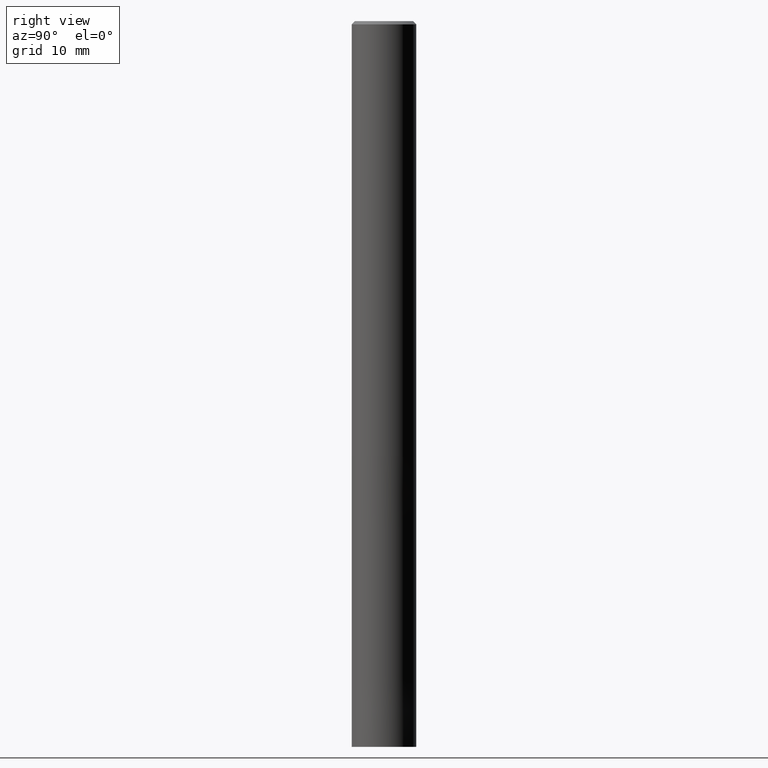
[diagram: clean part render]
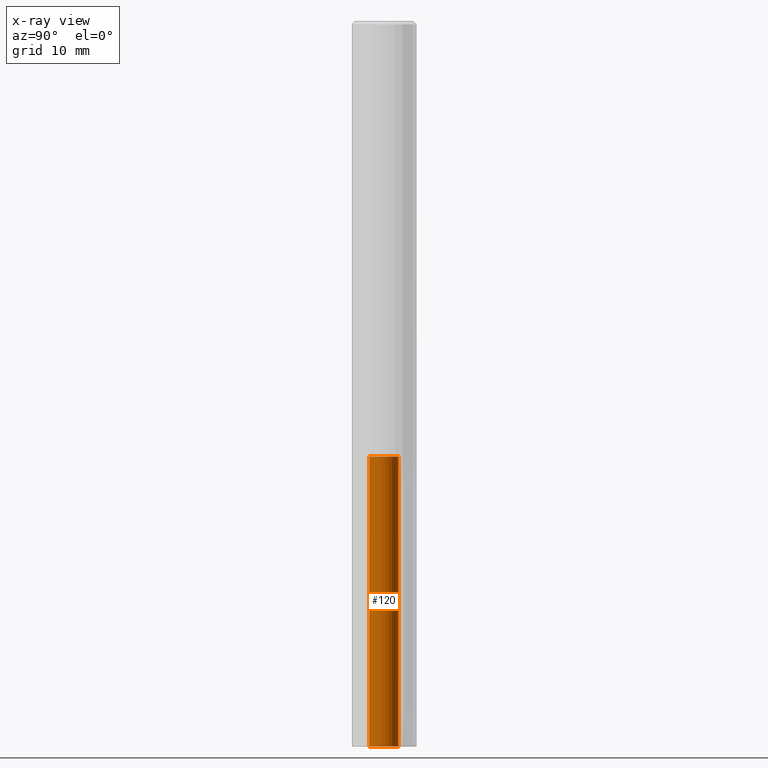
[diagram: x-ray — body ghosted, one internal face saturated and labeled with its STEP entity id]
A machine part, right view, then the same camera in x-ray: the body is ghosted and one INTERNAL B-rep face — a face not visible from any outside direction — is saturated and labeled: STEP entity #120.
In plain terms, the highlighted cylindrical surface (edge-blend (fillet) strip) has radius 1.8 mm, axis along (-0, -0, 1).
Its self-contained STEP definition (entity closure, byte-faithful):
#98=EDGE_CURVE('',#214,#142,#244,.T.);
#112=VERTEX_POINT('',#258);
#120=ADVANCED_FACE('',(#268),#269,.F.);
#134=EDGE_CURVE('',#218,#214,#287,.T.);
#142=VERTEX_POINT('',#296);
#194=EDGE_CURVE('',#112,#142,#356,.T.);
#214=VERTEX_POINT('',#377);
#216=EDGE_CURVE('',#112,#218,#379,.T.);
#218=VERTEX_POINT('',#381);
#244=LINE('',#400,#401);
#258=CARTESIAN_POINT('',(0.0,1.8,-54.0));
#268=FACE_OUTER_BOUND('',#432,.T.);
#269=CYLINDRICAL_SURFACE('',#433,1.8);
#287=CIRCLE('',#455,1.8);
#296=CARTESIAN_POINT('',(2.20429143688028E-016,-1.8,-54.0));
#356=CIRCLE('',#541,1.8);
#377=CARTESIAN_POINT('',(2.20429143688028E-016,-1.8,-90.0));
#379=LINE('',#568,#569);
#381=CARTESIAN_POINT('',(0.0,1.8,-90.0));
#400=CARTESIAN_POINT('',(2.20429143688028E-016,-1.8,-72.0));
#401=VECTOR('',#584,1.0);
#432=EDGE_LOOP('',(#610,#611,#612,#613));
#433=AXIS2_PLACEMENT_3D('',#614,#615,#616);
#455=AXIS2_PLACEMENT_3D('',#650,#651,#652);
#541=AXIS2_PLACEMENT_3D('',#735,#736,#737);
#568=CARTESIAN_POINT('',(-2.20429143688028E-016,1.8,-72.0));
#569=VECTOR('',#754,1.0);
#584=DIRECTION('',(0.0,-0.0,1.0));
#610=ORIENTED_EDGE('',*,*,#216,.T.);
#611=ORIENTED_EDGE('',*,*,#134,.T.);
#612=ORIENTED_EDGE('',*,*,#98,.T.);
#613=ORIENTED_EDGE('',*,*,#194,.F.);
#614=CARTESIAN_POINT('',(0.0,0.0,-72.0));
#615=DIRECTION('',(-0.0,-0.0,1.0));
#616=DIRECTION('',(0.0,1.0,0.0));
#650=CARTESIAN_POINT('',(0.0,0.0,-90.0));
#651=DIRECTION('',(0.0,0.0,-1.0));
#652=DIRECTION('',(0.0,1.0,0.0));
#735=CARTESIAN_POINT('',(0.0,0.0,-54.0));
#736=DIRECTION('',(0.0,0.0,-1.0));
#737=DIRECTION('',(0.0,1.0,0.0));
#754=DIRECTION('',(0.0,-0.0,-1.0));